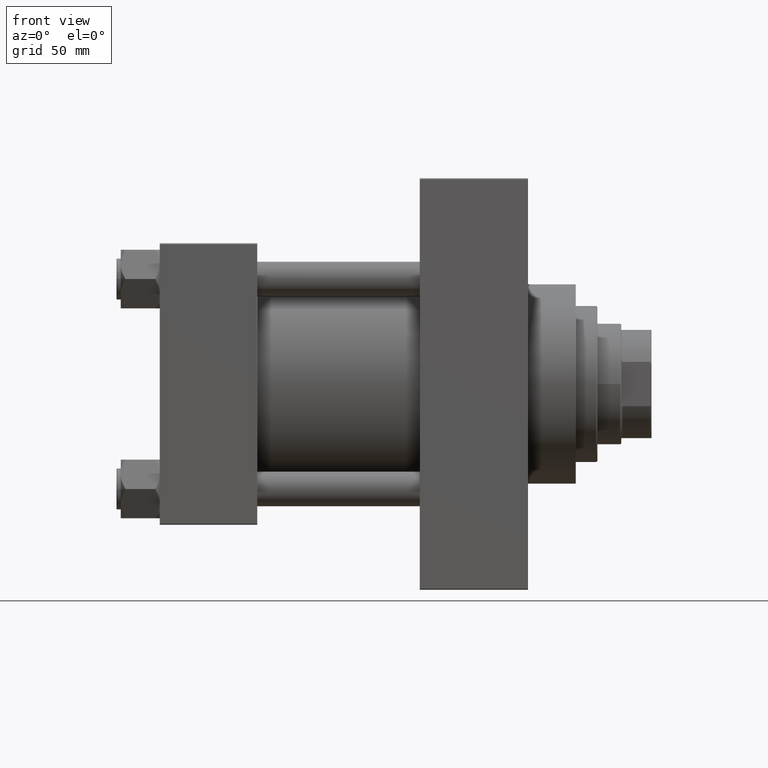
[diagram: clean part render]
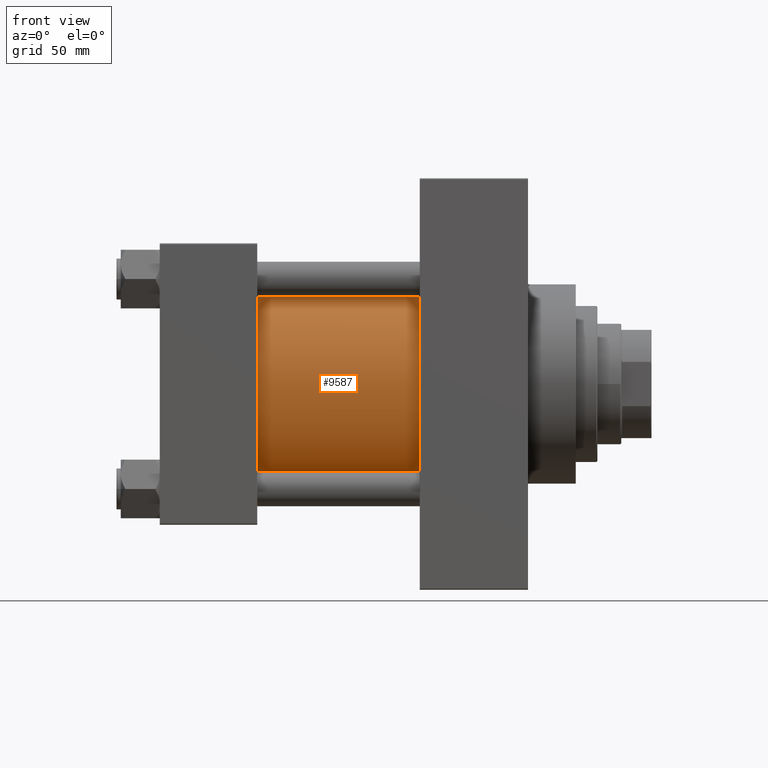
[diagram: same view with one face highlighted and labeled with its STEP entity id]
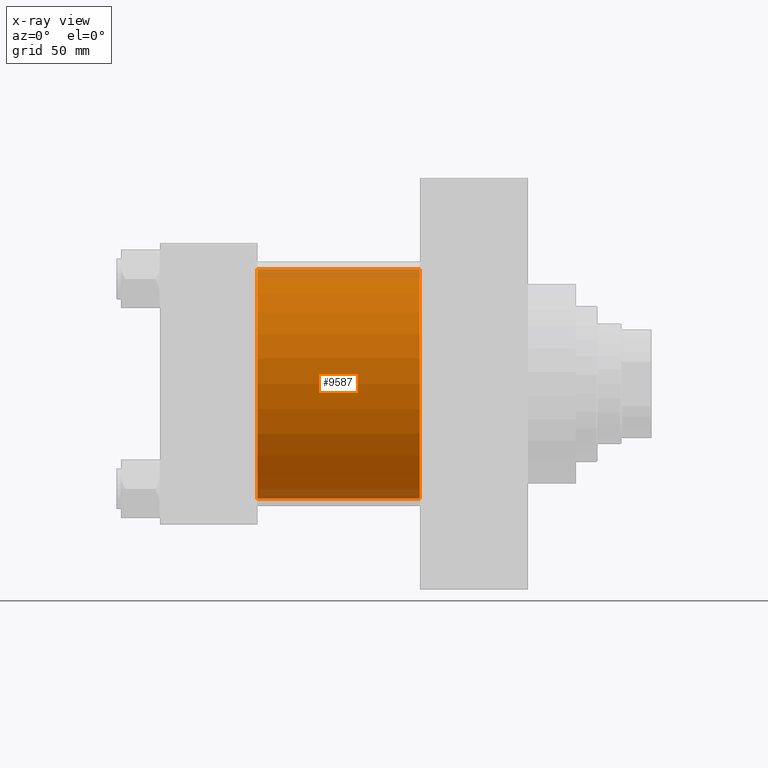
[diagram: x-ray of the same camera — body ghosted, the highlighted face saturated]
A machine part, front view. The second image highlights one B-rep face of the part: STEP entity #9587.
The next image is the same camera in x-ray: the body ghosted, the highlighted face saturated — about 7% of this face is hidden behind the body in this view.
In plain terms, the highlighted cylindrical surface (partial cylindrical patch) has radius 53 mm, axis along (-1, -0, -0).
Its self-contained STEP definition (entity closure, byte-faithful):
#359 = CARTESIAN_POINT ( 'NONE',  ( 45.00000000000000000, -2.602085213965210642E-15, 53.00000000000000711 ) ) ;
#2492 = FACE_OUTER_BOUND ( 'NONE', #5146, .T. ) ;
#5146 = EDGE_LOOP ( 'NONE', ( #26707, #23684, #20605, #7105 ) ) ;
#6282 = CARTESIAN_POINT ( 'NONE',  ( 45.00000000000000000, -2.602085213965210642E-15, 0.000000000000000000 ) ) ;
#7105 = ORIENTED_EDGE ( 'NONE', *, *, #11241, .T. ) ;
#8249 = AXIS2_PLACEMENT_3D ( 'NONE', #6282, #13531, #20995 ) ;
#8733 = CARTESIAN_POINT ( 'NONE',  ( 120.0000000000000000, -2.602085213965210642E-15, 53.00000000000000711 ) ) ;
#9587 = ADVANCED_FACE ( 'NONE', ( #2492 ), #35101, .T. ) ;
#10010 = DIRECTION ( 'NONE',  ( 0.000000000000000000, 0.000000000000000000, 1.000000000000000000 ) ) ;
#11241 = EDGE_CURVE ( 'NONE', #17060, #14096, #39055, .T. ) ;
#13149 = CARTESIAN_POINT ( 'NONE',  ( 120.0000000000000000, -2.602085213965210642E-15, 0.000000000000000000 ) ) ;
#13424 = VECTOR ( 'NONE', #17334, 1000.000000000000000 ) ;
#13531 = DIRECTION ( 'NONE',  ( 1.000000000000000000, -0.000000000000000000, 0.000000000000000000 ) ) ;
#14096 = VERTEX_POINT ( 'NONE', #24012 ) ;
#15138 = VERTEX_POINT ( 'NONE', #44708 ) ;
#16814 = CARTESIAN_POINT ( 'NONE',  ( 120.0000000000000000, 3.888542821515762466E-15, -53.00000000000000711 ) ) ;
#17060 = VERTEX_POINT ( 'NONE', #359 ) ;
#17334 = DIRECTION ( 'NONE',  ( -1.000000000000000000, -0.000000000000000000, -0.000000000000000000 ) ) ;
#18373 = DIRECTION ( 'NONE',  ( 0.000000000000000000, 0.000000000000000000, -1.000000000000000000 ) ) ;
#18601 = CARTESIAN_POINT ( 'NONE',  ( 120.0000000000000000, -2.602085213965210642E-15, 0.000000000000000000 ) ) ;
#20605 = ORIENTED_EDGE ( 'NONE', *, *, #28887, .T. ) ;
#20995 = DIRECTION ( 'NONE',  ( 0.000000000000000000, 0.000000000000000000, 1.000000000000000000 ) ) ;
#21901 = AXIS2_PLACEMENT_3D ( 'NONE', #18601, #36221, #18373 ) ;
#23684 = ORIENTED_EDGE ( 'NONE', *, *, #37356, .F. ) ;
#24012 = CARTESIAN_POINT ( 'NONE',  ( 45.00000000000000000, 3.888542821515762466E-15, -53.00000000000000711 ) ) ;
#26678 = AXIS2_PLACEMENT_3D ( 'NONE', #13149, #39421, #10010 ) ;
#26707 = ORIENTED_EDGE ( 'NONE', *, *, #46398, .F. ) ;
#28887 = EDGE_CURVE ( 'NONE', #15138, #17060, #36498, .T. ) ;
#31912 = CIRCLE ( 'NONE', #21901, 53.00000000000000711 ) ;
#34765 = DIRECTION ( 'NONE',  ( -1.000000000000000000, -0.000000000000000000, -0.000000000000000000 ) ) ;
#35101 = CYLINDRICAL_SURFACE ( 'NONE', #26678, 53.00000000000000711 ) ;
#36221 = DIRECTION ( 'NONE',  ( 1.000000000000000000, 0.000000000000000000, 0.000000000000000000 ) ) ;
#36498 = LINE ( 'NONE', #8733, #39416 ) ;
#37356 = EDGE_CURVE ( 'NONE', #15138, #46679, #31912, .T. ) ;
#39055 = CIRCLE ( 'NONE', #8249, 53.00000000000000711 ) ;
#39416 = VECTOR ( 'NONE', #34765, 1000.000000000000000 ) ;
#39421 = DIRECTION ( 'NONE',  ( -1.000000000000000000, -0.000000000000000000, -0.000000000000000000 ) ) ;
#39758 = CARTESIAN_POINT ( 'NONE',  ( 120.0000000000000000, 3.888542821515762466E-15, -53.00000000000000711 ) ) ;
#42893 = LINE ( 'NONE', #39758, #13424 ) ;
#44708 = CARTESIAN_POINT ( 'NONE',  ( 120.0000000000000000, -2.602085213965210642E-15, 53.00000000000000711 ) ) ;
#46398 = EDGE_CURVE ( 'NONE', #46679, #14096, #42893, .T. ) ;
#46679 = VERTEX_POINT ( 'NONE', #16814 ) ;